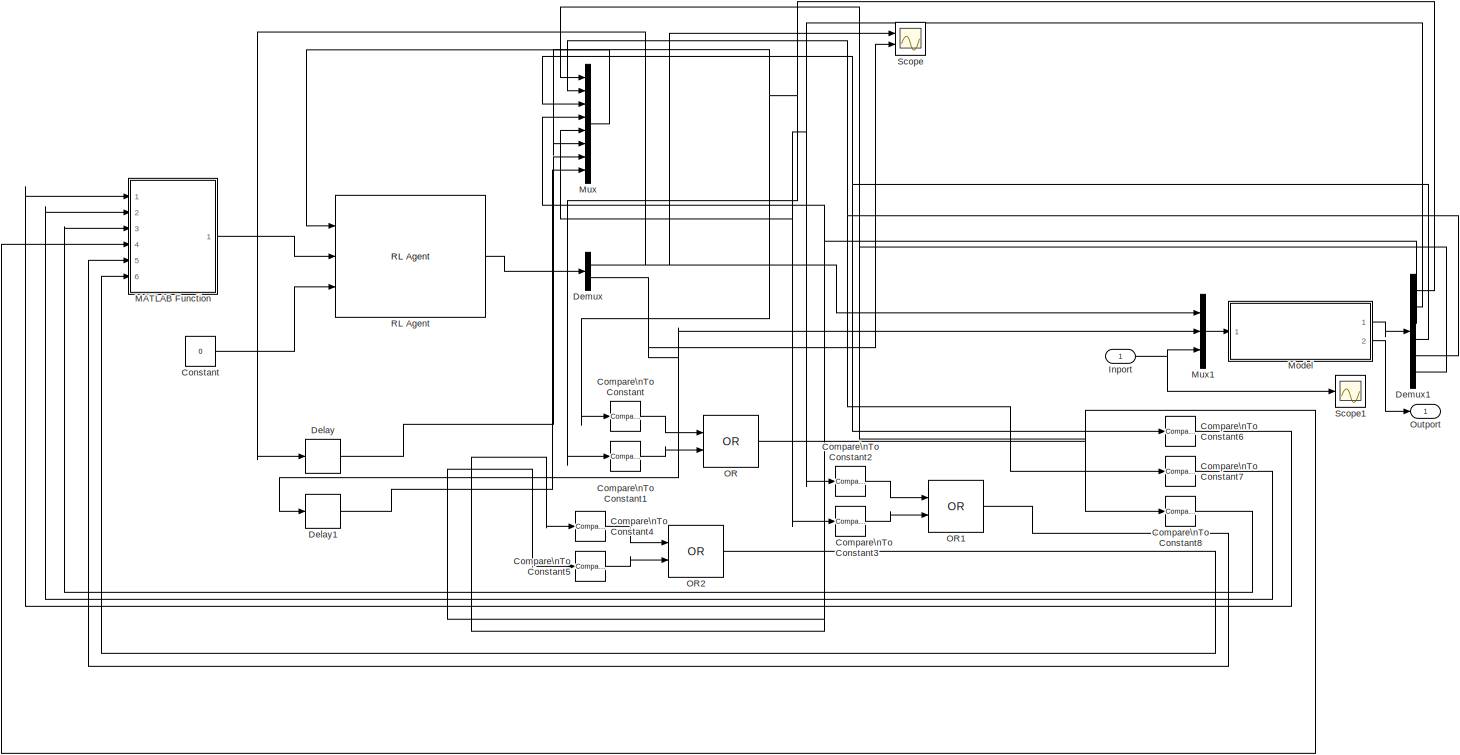
[diagram: root canvas - part 1/1, most of the canvas]
MODEL rl_top_9bus
KIND model
BLOCK [Reference] Compare\nTo Constant  REF=simulink/Logic and Bit\nOperations/Compare\nTo Constant
  OutDataTypeStr = boolean
  Ports = [1, 1]
  RTWMemSecDataConstants = Inherit from model
  RTWMemSecDataInternal = Inherit from model
  RTWMemSecDataParameters = Inherit from model
  RTWMemSecFuncExecute = Inherit from model
  RTWMemSecFuncInitTerm = Inherit from model
  SID = 227
  SourceBlock = simulink/Logic and Bit\nOperations/Compare\nTo Constant
  SourceProductBaseCode = SL
  SourceType = Compare To Constant
  ZeroCross = on
  const = 59.5
  relop = <
BLOCK [Reference] Compare\nTo Constant1  REF=simulink/Logic and Bit\nOperations/Compare\nTo Constant
  OutDataTypeStr = boolean
  Ports = [1, 1]
  RTWMemSecDataConstants = Inherit from model
  RTWMemSecDataInternal = Inherit from model
  RTWMemSecDataParameters = Inherit from model
  RTWMemSecFuncExecute = Inherit from model
  RTWMemSecFuncInitTerm = Inherit from model
  SID = 228
  SourceBlock = simulink/Logic and Bit\nOperations/Compare\nTo Constant
  SourceProductBaseCode = SL
  SourceType = Compare To Constant
  ZeroCross = on
  const = 60.5
  relop = >
BLOCK [Reference] Compare\nTo Constant2  REF=simulink/Logic and Bit\nOperations/Compare\nTo Constant
  OutDataTypeStr = boolean
  Ports = [1, 1]
  RTWMemSecDataConstants = Inherit from model
  RTWMemSecDataInternal = Inherit from model
  RTWMemSecDataParameters = Inherit from model
  RTWMemSecFuncExecute = Inherit from model
  RTWMemSecFuncInitTerm = Inherit from model
  SID = 229
  SourceBlock = simulink/Logic and Bit\nOperations/Compare\nTo Constant
  SourceProductBaseCode = SL
  SourceType = Compare To Constant
  ZeroCross = on
  const = 59.5
  relop = <
BLOCK [Reference] Compare\nTo Constant3  REF=simulink/Logic and Bit\nOperations/Compare\nTo Constant
  OutDataTypeStr = boolean
  Ports = [1, 1]
  RTWMemSecDataConstants = Inherit from model
  RTWMemSecDataInternal = Inherit from model
  RTWMemSecDataParameters = Inherit from model
  RTWMemSecFuncExecute = Inherit from model
  RTWMemSecFuncInitTerm = Inherit from model
  SID = 230
  SourceBlock = simulink/Logic and Bit\nOperations/Compare\nTo Constant
  SourceProductBaseCode = SL
  SourceType = Compare To Constant
  ZeroCross = on
  const = 60.5
  relop = >
BLOCK [Reference] Compare\nTo Constant4  REF=simulink/Logic and Bit\nOperations/Compare\nTo Constant
  OutDataTypeStr = boolean
  Ports = [1, 1]
  RTWMemSecDataConstants = Inherit from model
  RTWMemSecDataInternal = Inherit from model
  RTWMemSecDataParameters = Inherit from model
  RTWMemSecFuncExecute = Inherit from model
  RTWMemSecFuncInitTerm = Inherit from model
  SID = 232
  SourceBlock = simulink/Logic and Bit\nOperations/Compare\nTo Constant
  SourceProductBaseCode = SL
  SourceType = Compare To Constant
  ZeroCross = on
  const = 59.5
  relop = <
BLOCK [Reference] Compare\nTo Constant5  REF=simulink/Logic and Bit\nOperations/Compare\nTo Constant
  OutDataTypeStr = boolean
  Ports = [1, 1]
  RTWMemSecDataConstants = Inherit from model
  RTWMemSecDataInternal = Inherit from model
  RTWMemSecDataParameters = Inherit from model
  RTWMemSecFuncExecute = Inherit from model
  RTWMemSecFuncInitTerm = Inherit from model
  SID = 233
  SourceBlock = simulink/Logic and Bit\nOperations/Compare\nTo Constant
  SourceProductBaseCode = SL
  SourceType = Compare To Constant
  ZeroCross = on
  const = 60.5
  relop = >
BLOCK [Reference] Compare\nTo Constant6  REF=simulink/Logic and Bit\nOperations/Compare\nTo Constant
  OutDataTypeStr = boolean
  Ports = [1, 1]
  RTWMemSecDataConstants = Inherit from model
  RTWMemSecDataInternal = Inherit from model
  RTWMemSecDataParameters = Inherit from model
  RTWMemSecFuncExecute = Inherit from model
  RTWMemSecFuncInitTerm = Inherit from model
  SID = 235
  SourceBlock = simulink/Logic and Bit\nOperations/Compare\nTo Constant
  SourceProductBaseCode = SL
  SourceType = Compare To Constant
  ZeroCross = on
  const = 20.3
  relop = <
BLOCK [Reference] Compare\nTo Constant7  REF=simulink/Logic and Bit\nOperations/Compare\nTo Constant
  OutDataTypeStr = boolean
  Ports = [1, 1]
  RTWMemSecDataConstants = Inherit from model
  RTWMemSecDataInternal = Inherit from model
  RTWMemSecDataParameters = Inherit from model
  RTWMemSecFuncExecute = Inherit from model
  RTWMemSecFuncInitTerm = Inherit from model
  SID = 236
  SourceBlock = simulink/Logic and Bit\nOperations/Compare\nTo Constant
  SourceProductBaseCode = SL
  SourceType = Compare To Constant
  ZeroCross = on
  const = 15.8
  relop = <
BLOCK [Reference] Compare\nTo Constant8  REF=simulink/Logic and Bit\nOperations/Compare\nTo Constant
  OutDataTypeStr = boolean
  Ports = [1, 1]
  RTWMemSecDataConstants = Inherit from model
  RTWMemSecDataInternal = Inherit from model
  RTWMemSecDataParameters = Inherit from model
  RTWMemSecFuncExecute = Inherit from model
  RTWMemSecFuncInitTerm = Inherit from model
  SID = 237
  SourceBlock = simulink/Logic and Bit\nOperations/Compare\nTo Constant
  SourceProductBaseCode = SL
  SourceType = Compare To Constant
  ZeroCross = on
  const = 18.2
  relop = <
BLOCK [Constant] Constant
  SID = 225
  Value = 0
BLOCK [Delay] Delay
  DelayLength = 1
  InputPortMap = u0
  Ports = [1, 1]
  SID = 240
BLOCK [Delay] Delay1
  DelayLength = 1
  InputPortMap = u0
  Ports = [1, 1]
  SID = 241
BLOCK [Demux] Demux
  Outputs = 2
  Ports = [1, 2]
  SID = 212
BLOCK [Demux] Demux1
  Outputs = 6
  Ports = [1, 6]
  SID = 258
BLOCK [Inport] Inport
  SID = 250
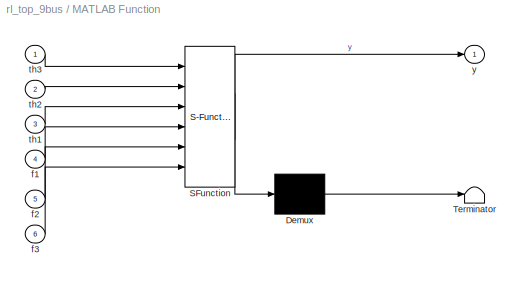
BLOCK [SubSystem] MATLAB Function
  ErrorFcn = Stateflow.Translate.translate
  PermitHierarchicalResolution = ExplicitOnly
  Ports = [6, 1]
  RequestExecContextInheritance = off
  SFBlockType = MATLAB Function
  SID = 239
  TreatAsAtomicUnit = on
BLOCK [Demux] MATLAB Function/ Demux 
  Outputs = 1
  Ports = [1, 1]
  SID = 239::32
BLOCK [S-Function] MATLAB Function/ SFunction 
  EnableBusSupport = on
  FunctionName = sf_sfun
  PortCounts = [6 2]
  Ports = [6, 2]
  SFcnIsStateOwnerBlock = off
  SFunctionDeploymentMode = off
  SID = 239::31
  Tag = Stateflow S-Function 4
BLOCK [Terminator] MATLAB Function/ Terminator 
  SID = 239::33
BLOCK [Inport] MATLAB Function/f1
  Port = 4
  SID = 239::22
BLOCK [Inport] MATLAB Function/f2
  Port = 5
  SID = 239::23
BLOCK [Inport] MATLAB Function/f3
  Port = 6
  SID = 239::24
BLOCK [Inport] MATLAB Function/th1
  Port = 3
  SID = 239::27
BLOCK [Inport] MATLAB Function/th2
  Port = 2
  SID = 239::26
BLOCK [Inport] MATLAB Function/th3
  SID = 239::25
BLOCK [Outport] MATLAB Function/y
  SID = 239::5
BLOCK [ModelReference] Model
  ModelNameDialog = bus_9.mdl
  ModelReferenceVersion = 1.16
  Ports = [1, 2]
  SID = 255
BLOCK [Mux] Mux
  DisplayOption = bar
  Inputs = 8
  Ports = [8, 1]
  SID = 215
BLOCK [Mux] Mux1
  DisplayOption = bar
  Inputs = 3
  Ports = [3, 1]
  SID = 257
BLOCK [Logic] OR
  AllPortsSameDT = off
  IconShape = distinctive
  Operator = OR
  OutDataTypeStr = boolean
  Ports = [2, 1]
  SID = 226
BLOCK [Logic] OR1
  AllPortsSameDT = off
  IconShape = distinctive
  Operator = OR
  OutDataTypeStr = boolean
  Ports = [2, 1]
  SID = 231
BLOCK [Logic] OR2
  AllPortsSameDT = off
  IconShape = distinctive
  Operator = OR
  OutDataTypeStr = boolean
  Ports = [2, 1]
  SID = 234
BLOCK [Outport] Outport
  SID = 259
BLOCK [Reference] RL Agent  REF=rllib/RL Agent
  Agent = agent9busnew2
  ExternalActionAsInput = off
  Ports = [3, 1]
  ProvideCumRwd = off
  RTWMemSecDataConstants = Inherit from model
  RTWMemSecDataInternal = Inherit from model
  RTWMemSecDataParameters = Inherit from model
  RTWMemSecFuncExecute = Inherit from model
  RTWMemSecFuncInitTerm = Inherit from model
  SID = 245
  SourceBlock = rllib/RL Agent
  SourceProductBaseCode = RL
  SourceType = RL Agent
  TreatAsDirectFeedthrough = on
BLOCK [Scope] Scope
  Floating = off
  NumInputPorts = 2
  Ports = [2]
  SID = 242
  ScopeSpecificationString = Simulink.scopes.TimeScopeBlockCfg('CurrentConfiguration', extmgr.ConfigurationSet(extmgr.Configuration('Core','General UI',true),extmgr.Configuration('Core','Source UI',true),extmgr.Configuration('Sources','WiredSimulink',true),extmgr.Configuration('Visuals','Time Domain',true,'SerializedDisplays',{struct('MinYLimReal','-0.8589','MaxYLimReal','3.42877','YLabelReal','','MinYLimMag','0.00000','MaxYL...<+1387ch>
BLOCK [Scope] Scope1
  Floating = off
  NumInputPorts = 1
  Ports = [1]
  SID = 261
  ScopeSpecificationString = Simulink.scopes.TimeScopeBlockCfg('CurrentConfiguration', extmgr.ConfigurationSet(extmgr.Configuration('Core','General UI',true),extmgr.Configuration('Core','Source UI',true),extmgr.Configuration('Sources','WiredSimulink',true,'DataLoggingVariableName','ScopeData1'),extmgr.Configuration('Visuals','Time Domain',true,'SerializedDisplays',{struct('MinYLimReal','-0.12139','MaxYLimReal','4.45282','YLab...<+1365ch>
LINE Compare\nTo Constant1:1 -> OR:2
LINE Compare\nTo Constant2:1 -> OR1:1
LINE Compare\nTo Constant3:1 -> OR1:2
LINE Compare\nTo Constant4:1 -> OR2:1
LINE Compare\nTo Constant5:1 -> OR2:2
LINE Compare\nTo Constant6:1 -> MATLAB Function:1
LINE Compare\nTo Constant7:1 -> MATLAB Function:2
LINE Compare\nTo Constant8:1 -> MATLAB Function:3
LINE Compare\nTo Constant:1 -> OR:1
LINE Constant:1 -> RL Agent:3
LINE Delay1:1 -> Mux:8
LINE Delay:1 -> Mux:7
NET Demux1:1 -> Compare\nTo Constant1:1, Compare\nTo Constant:1, Mux:6
NET Demux1:2 -> Compare\nTo Constant2:1, Compare\nTo Constant3:1, Mux:5
NET Demux1:3 -> Compare\nTo Constant4:1, Compare\nTo Constant5:1, Mux:4
NET Demux1:4 -> Compare\nTo Constant6:1, Mux:3
NET Demux1:5 -> Compare\nTo Constant7:1, Mux:2
NET Demux1:6 -> Compare\nTo Constant8:1, Mux:1
NET Demux:1 -> Delay:1, Mux1:1, Scope:1
NET Demux:2 -> Delay1:1, Mux1:2, Scope:2
NET Inport:1 -> Mux1:3, Scope1:1
LINE MATLAB Function/ Demux :1 -> MATLAB Function/ Terminator :1
LINE MATLAB Function/ SFunction :1 -> MATLAB Function/ Demux :1
LINE MATLAB Function/ SFunction :2 -> MATLAB Function/y:1
LINE MATLAB Function/f1:1 -> MATLAB Function/ SFunction :4
LINE MATLAB Function/f2:1 -> MATLAB Function/ SFunction :5
LINE MATLAB Function/f3:1 -> MATLAB Function/ SFunction :6
LINE MATLAB Function/th1:1 -> MATLAB Function/ SFunction :3
LINE MATLAB Function/th2:1 -> MATLAB Function/ SFunction :2
LINE MATLAB Function/th3:1 -> MATLAB Function/ SFunction :1
LINE MATLAB Function:1 -> RL Agent:2
LINE Model:1 -> Demux1:1
LINE Model:2 -> Outport:1
LINE Mux1:1 -> Model:1
LINE Mux:1 -> RL Agent:1
LINE OR1:1 -> MATLAB Function:5
LINE OR2:1 -> MATLAB Function:6
LINE OR:1 -> MATLAB Function:4
LINE RL Agent:1 -> Demux:1
note: NET lines group one-source signal fan-out (src -> all destinations, sorted); 1:1 wires keep LINE
CHART MATLAB Function states=1 transitions=1
  STATE_LABEL 'eML_blk_kernel()'
